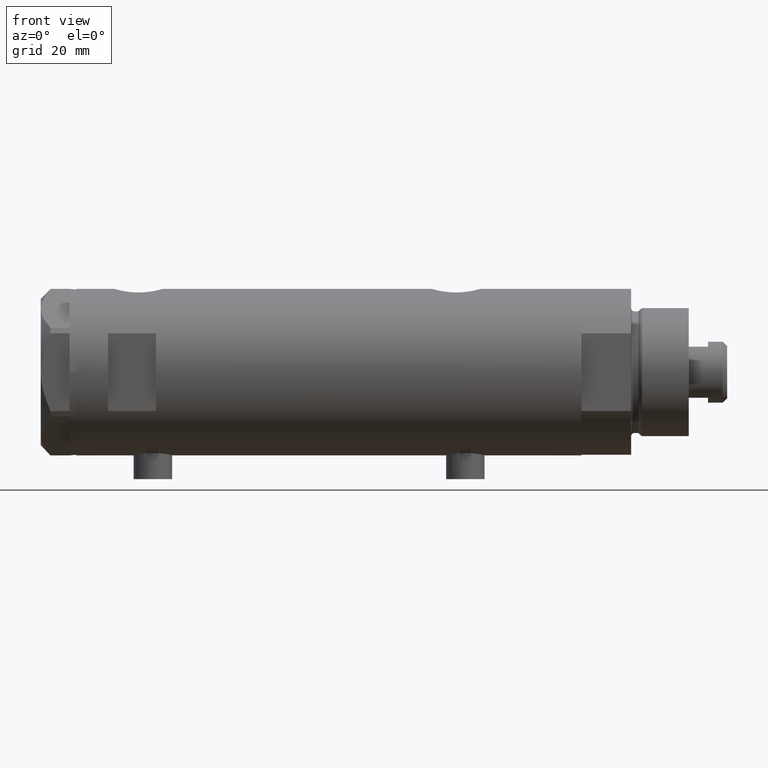
[diagram: clean part render]
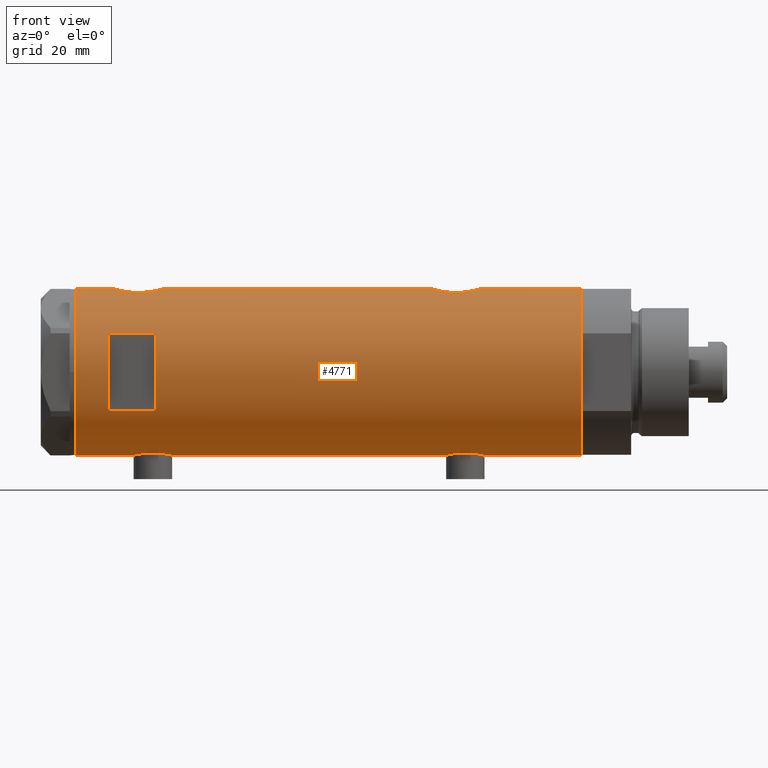
[diagram: same view with one face highlighted and labeled with its STEP entity id]
A machine part, front view. The second image highlights one B-rep face of the part: STEP entity #4771.
In plain terms, the highlighted cylindrical surface (partial cylindrical patch) has radius 26 mm, axis along (-1, -0, 0).
Its self-contained STEP definition (entity closure, byte-faithful):
#44 = DIRECTION ( 'NONE',  ( 0.000000000000000000, 0.000000000000000000, 1.000000000000000000 ) ) ;
#119 = VERTEX_POINT ( 'NONE', #2258 ) ;
#127 = ORIENTED_EDGE ( 'NONE', *, *, #2480, .F. ) ;
#138 = VECTOR ( 'NONE', #2294, 1000.000000000000000 ) ;
#152 = CARTESIAN_POINT ( 'NONE',  ( -25.24765475072630139, -6.209883762780014749, -41.83321815644903552 ) ) ;
#172 = CARTESIAN_POINT ( 'NONE',  ( 25.17393786935995692, -6.507882790539421869, 55.68962666655968974 ) ) ;
#191 = CARTESIAN_POINT ( 'NONE',  ( 0.000000000000000000, 0.000000000000000000, -78.95000000000000284 ) ) ;
#193 = CARTESIAN_POINT ( 'NONE',  ( 24.89478872726946079, -7.499966281647701294, 59.69821850634782123 ) ) ;
#195 = CARTESIAN_POINT ( 'NONE',  ( 25.17510548814053095, -6.503212750695464450, -35.98238212184651275 ) ) ;
#197 = CARTESIAN_POINT ( 'NONE',  ( -25.23763877699558122, -6.249927116972450847, -42.85835527665468447 ) ) ;
#217 = CARTESIAN_POINT ( 'NONE',  ( 24.91324908721446718, -7.438459228814661373, 60.44017499374191260 ) ) ;
#229 = CARTESIAN_POINT ( 'NONE',  ( -26.00000000000000000, -0.4086738135806028960, 48.70000000000000995 ) ) ;
#238 = CARTESIAN_POINT ( 'NONE',  ( 0.000000000000000000, 0.000000000000000000, 78.95000000000000284 ) ) ;
#246 = CARTESIAN_POINT ( 'NONE',  ( 25.59665538672496865, -4.580438224580679396, 65.40889127712388529 ) ) ;
#249 = CARTESIAN_POINT ( 'NONE',  ( 25.59665538672496155, -4.580438224580676732, -33.79110872287610334 ) ) ;
#305 = DIRECTION ( 'NONE',  ( 0.000000000000000000, 0.000000000000000000, 1.000000000000000000 ) ) ;
#324 = CARTESIAN_POINT ( 'NONE',  ( -25.67167563980648382, -4.129238867693851844, 50.24065943568894710 ) ) ;
#345 = LINE ( 'NONE', #2269, #138 ) ;
#371 = CARTESIAN_POINT ( 'NONE',  ( -25.92364458890658696, -2.026637113504536458, 60.87630990691475574 ) ) ;
#400 = CARTESIAN_POINT ( 'NONE',  ( -25.85385060263650203, -2.778671585188186910, 60.56314451304238133 ) ) ;
#457 = EDGE_CURVE ( 'NONE', #1520, #4320, #3924, .T. ) ;
#491 = CARTESIAN_POINT ( 'NONE',  ( 26.00000000000000355, 0.000000000000000000, -78.95000000000000284 ) ) ;
#492 = CARTESIAN_POINT ( 'NONE',  ( -25.64593536028936072, -4.278686337618966995, -38.08968397039122067 ) ) ;
#512 = DIRECTION ( 'NONE',  ( -0.000000000000000000, -0.000000000000000000, -1.000000000000000000 ) ) ;
#532 = CARTESIAN_POINT ( 'NONE',  ( 25.72873412774686486, -3.768477344985556421, 65.95287460144461988 ) ) ;
#536 = CARTESIAN_POINT ( 'NONE',  ( -25.57228991600092272, -4.705691472451704271, -46.78339690124655448 ) ) ;
#560 = CARTESIAN_POINT ( 'NONE',  ( 25.52567976009757089, -4.956266804246109103, 65.10019927459094902 ) ) ;
#563 = CARTESIAN_POINT ( 'NONE',  ( -25.42883439573801141, -5.424786127492342125, -39.51918542739093709 ) ) ;
#564 = EDGE_CURVE ( 'NONE', #4646, #1017, #1468, .T. ) ;
#573 = LINE ( 'NONE', #2084, #688 ) ;
#583 = CARTESIAN_POINT ( 'NONE',  ( 26.00000000000000355, -0.4910237949823177406, 66.94999999999998863 ) ) ;
#585 = CARTESIAN_POINT ( 'NONE',  ( 25.78993643992928853, -3.329561377902402697, -33.01178439721263658 ) ) ;
#587 = CARTESIAN_POINT ( 'NONE',  ( -25.38744165544136777, -5.612847683295916212, -45.42987583238478067 ) ) ;
#596 = CARTESIAN_POINT ( 'NONE',  ( -25.95218276861526618, -1.627663810194429406, 48.90149019612395165 ) ) ;
#608 = EDGE_CURVE ( 'NONE', #2260, #119, #1695, .T. ) ;
#616 = CARTESIAN_POINT ( 'NONE',  ( 25.59500516383205593, -4.575229401795787965, -45.69787755065420498 ) ) ;
#634 = CARTESIAN_POINT ( 'NONE',  ( -26.00000000000000355, -2.813058302341337106E-16, 61.20000000000000284 ) ) ;
#640 = CARTESIAN_POINT ( 'NONE',  ( 25.30930190055639883, -5.959775463244125326, 54.87025956521971892 ) ) ;
#643 = CARTESIAN_POINT ( 'NONE',  ( 0.000000000000000000, 0.000000000000000000, 53.95000000000012363 ) ) ;
#647 = CARTESIAN_POINT ( 'NONE',  ( 26.00000000000000355, 3.343657407582877388E-16, -47.25000000000000000 ) ) ;
#662 = CARTESIAN_POINT ( 'NONE',  ( 24.89854802586676286, -7.487520416261737921, -39.25184316422095065 ) ) ;
#667 = CARTESIAN_POINT ( 'NONE',  ( -25.38744165544137132, -5.612847683295914436, 52.17012416761526339 ) ) ;
#688 = VECTOR ( 'NONE', #1394, 1000.000000000000000 ) ;
#690 = DIRECTION ( 'NONE',  ( 1.000000000000000000, 0.000000000000000000, 0.000000000000000000 ) ) ;
#739 = CARTESIAN_POINT ( 'NONE',  ( -25.38662204309617110, -5.616507264474310368, 57.72199377719326208 ) ) ;
#803 = EDGE_CURVE ( 'NONE', #3344, #3748, #345, .T. ) ;
#853 = CARTESIAN_POINT ( 'NONE',  ( -25.74330903162725903, -3.648508829439220946, -37.57132285284201600 ) ) ;
#876 = ORIENTED_EDGE ( 'NONE', *, *, #2471, .T. ) ;
#879 = DIRECTION ( 'NONE',  ( 0.000000000000000000, 0.000000000000000000, 1.000000000000000000 ) ) ;
#894 = EDGE_CURVE ( 'NONE', #1728, #3716, #2166, .T. ) ;
#895 = CARTESIAN_POINT ( 'NONE',  ( 26.00000000000000355, -3.975028449552882818E-20, 66.95000000000000284 ) ) ;
#914 = LINE ( 'NONE', #3250, #1802 ) ;
#924 = CARTESIAN_POINT ( 'NONE',  ( 25.89059789403177092, -2.425642437452263156, 66.56377447242300605 ) ) ;
#930 = CARTESIAN_POINT ( 'NONE',  ( -25.52190669608696183, -4.968444991210430040, -46.46341092192485434 ) ) ;
#952 = CARTESIAN_POINT ( 'NONE',  ( 25.98569226047905545, -0.9886551788957260722, 51.99917623399824151 ) ) ;
#954 = CARTESIAN_POINT ( 'NONE',  ( 25.11342038069227200, -6.734617143597207978, -36.41229304209507234 ) ) ;
#956 = CARTESIAN_POINT ( 'NONE',  ( -25.49846181844014126, -5.083495422175134060, -39.00822496617402635 ) ) ;
#967 = CARTESIAN_POINT ( 'NONE',  ( -26.00000000000000355, 3.184077527313362130E-15, 48.70000000000000995 ) ) ;
#980 = CARTESIAN_POINT ( 'NONE',  ( 24.92415241886515176, -7.401968919186680651, -38.51676462555185054 ) ) ;
#1017 = VERTEX_POINT ( 'NONE', #4705 ) ;
#1019 = CARTESIAN_POINT ( 'NONE',  ( -25.99036913299955742, -0.8159609457881432659, 48.73968856968109264 ) ) ;
#1036 = EDGE_LOOP ( 'NONE', ( #1612, #3061, #3268, #4561 ) ) ;
#1037 = CARTESIAN_POINT ( 'NONE',  ( 25.31004928890824957, -5.952041021437452173, -35.18019400116495632 ) ) ;
#1063 = CARTESIAN_POINT ( 'NONE',  ( -25.57167894663061958, -4.701762988462087733, 59.07280450192418186 ) ) ;
#1072 = CARTESIAN_POINT ( 'NONE',  ( 26.00000000000000355, -7.221007372182803218E-17, 51.95000000000000284 ) ) ;
#1098 = CARTESIAN_POINT ( 'NONE',  ( -26.00000000000000355, 3.184081677783118585E-15, -78.95000000000000284 ) ) ;
#1102 = AXIS2_PLACEMENT_3D ( 'NONE', #3122, #1213, #3874 ) ;
#1115 = VERTEX_POINT ( 'NONE', #1072 ) ;
#1116 = CARTESIAN_POINT ( 'NONE',  ( -25.74330903162726614, -3.648508829439214285, 60.02867714715799963 ) ) ;
#1133 = CARTESIAN_POINT ( 'NONE',  ( -25.67063510297210271, -4.128418051804841227, 59.64682575271267240 ) ) ;
#1153 = CARTESIAN_POINT ( 'NONE',  ( -25.81160981652327280, -3.129523010631800606, -48.06392973722076079 ) ) ;
#1187 = CARTESIAN_POINT ( 'NONE',  ( -26.00000000000000355, 3.184077527325983904E-15, -48.90000000000001279 ) ) ;
#1195 = CARTESIAN_POINT ( 'NONE',  ( -26.00000000000000355, 3.184081677783118585E-15, 78.95000000000000284 ) ) ;
#1196 = LINE ( 'NONE', #3488, #3528 ) ;
#1203 = EDGE_CURVE ( 'NONE', #4320, #1295, #4812, .T. ) ;
#1207 = VERTEX_POINT ( 'NONE', #634 ) ;
#1213 = DIRECTION ( 'NONE',  ( 0.000000000000000000, 0.000000000000000000, 1.000000000000000000 ) ) ;
#1226 = LINE ( 'NONE', #491, #4547 ) ;
#1230 = CARTESIAN_POINT ( 'NONE',  ( -26.00000000000000355, -6.335391871414786776E-16, -36.39999999999999858 ) ) ;
#1244 = ORIENTED_EDGE ( 'NONE', *, *, #1899, .F. ) ;
#1249 = DIRECTION ( 'NONE',  ( 1.000000000000000000, 0.000000000000000000, 0.000000000000000000 ) ) ;
#1272 = CARTESIAN_POINT ( 'NONE',  ( 25.59500516383205948, -4.575229401795795958, 53.50212244934583339 ) ) ;
#1295 = VERTEX_POINT ( 'NONE', #967 ) ;
#1298 = CARTESIAN_POINT ( 'NONE',  ( 24.89854802586675930, -7.487520416261737033, 59.94815683577904508 ) ) ;
#1301 = CARTESIAN_POINT ( 'NONE',  ( -25.23758491649667235, -6.250144606721711682, -42.23988300428196396 ) ) ;
#1309 = CARTESIAN_POINT ( 'NONE',  ( -26.00000000000000355, 3.184077527313362130E-15, 48.70000000000000995 ) ) ;
#1327 = CARTESIAN_POINT ( 'NONE',  ( 24.96970063328116751, -7.247045583599693863, -41.69719214854801237 ) ) ;
#1329 = CARTESIAN_POINT ( 'NONE',  ( -25.95206678899177888, -1.628763264760263230, -36.60199186669786542 ) ) ;
#1358 = CARTESIAN_POINT ( 'NONE',  ( 25.38109653984943748, -5.641393955635659374, -34.80180907551250158 ) ) ;
#1382 = CARTESIAN_POINT ( 'NONE',  ( 25.00829008792692321, -7.115081037226465455, 61.87301003740819993 ) ) ;
#1384 = CARTESIAN_POINT ( 'NONE',  ( 25.99999999999999645, -0.4982617809740603199, -47.24999999999999289 ) ) ;
#1394 = DIRECTION ( 'NONE',  ( 0.000000000000000000, 0.000000000000000000, 1.000000000000000000 ) ) ;
#1409 = CARTESIAN_POINT ( 'NONE',  ( 25.30930190055640239, -5.959775463244125326, -44.32974043478029103 ) ) ;
#1413 = CARTESIAN_POINT ( 'NONE',  ( 26.00000000000000355, -3.975028449552882818E-20, 66.95000000000000284 ) ) ;
#1443 = CARTESIAN_POINT ( 'NONE',  ( -25.42977453177915947, -5.420307583276853691, 51.81187728206638354 ) ) ;
#1457 = ORIENTED_EDGE ( 'NONE', *, *, #457, .F. ) ;
#1468 = CIRCLE ( 'NONE', #3678, 26.00000000000000355 ) ;
#1516 = DIRECTION ( 'NONE',  ( -0.000000000000000000, 0.000000000000000000, -1.000000000000000000 ) ) ;
#1520 = VERTEX_POINT ( 'NONE', #1187 ) ;
#1537 = CARTESIAN_POINT ( 'NONE',  ( -25.92425332714050867, -2.018894156999445411, -48.57896120675330565 ) ) ;
#1597 = DIRECTION ( 'NONE',  ( 0.000000000000000000, 0.000000000000000000, 1.000000000000000000 ) ) ;
#1598 = EDGE_CURVE ( 'NONE', #1207, #2362, #1196, .T. ) ;
#1612 = ORIENTED_EDGE ( 'NONE', *, *, #564, .F. ) ;
#1623 = CARTESIAN_POINT ( 'NONE',  ( -25.25769689814629615, -6.168504065326074759, -43.67646635296746638 ) ) ;
#1644 = CARTESIAN_POINT ( 'NONE',  ( 25.62983961939740496, -4.376509667782458202, 53.35441500957042393 ) ) ;
#1647 = CARTESIAN_POINT ( 'NONE',  ( -25.31538696791481868, -5.929326713517960812, -40.63203367791900433 ) ) ;
#1663 = CARTESIAN_POINT ( 'NONE',  ( 25.52449676677458612, -4.953491517965881386, 53.81325508665923962 ) ) ;
#1687 = DIRECTION ( 'NONE',  ( 0.000000000000000000, 0.000000000000000000, 1.000000000000000000 ) ) ;
#1690 = CARTESIAN_POINT ( 'NONE',  ( 25.41756773306325456, -5.475260495868974786, 64.58140873656947178 ) ) ;
#1693 = CARTESIAN_POINT ( 'NONE',  ( -25.99009752186832856, -0.8230863847107483533, -36.44082928593318371 ) ) ;
#1694 = B_SPLINE_CURVE_WITH_KNOTS ( 'NONE', 3,
 ( #895, #583, #3925, #4291, #924, #2440, #532, #246, #560, #1690, #3158, #3602, #3632, #1741, #2850, #1382, #3202, #2102, #217, #1298, #193, #2489, #1717, #3952, #3580, #4760, #4709, #3555, #172, #640, #4347, #4659, #1663, #1272, #1644, #3230, #3178, #2026, #4737, #952, #4317, #4684 ),
 .UNSPECIFIED., .F., .F.,
 ( 4, 2, 2, 2, 2, 2, 2, 2, 2, 2, 2, 2, 2, 2, 2, 2, 2, 2, 2, 2, 4 ),
 ( 0.02357432247332888128, 0.02504731828495720264, 0.02652031409658552746, 0.02799330990821384882, 0.02946630571984217017, 0.03020280362565634646, 0.03093930153147052275, 0.03241229734309883370, 0.03388529315472715159, 0.03462179106054130706, 0.03535828896635546947, 0.03683128477798380818, 0.03756778268379798447, 0.03830428058961215382, 0.03977727640124052721, 0.04125027221286890755, 0.04198677011868309772, 0.04272326802449730176, 0.04419626383612570292, 0.04566925964775411101, 0.04714225545938251910 ),
 .UNSPECIFIED. ) ;
#1695 = CIRCLE ( 'NONE', #2959, 26.00000000000000355 ) ;
#1717 = CARTESIAN_POINT ( 'NONE',  ( 24.90947356773250121, -7.451722770779340976, 58.46809158171851095 ) ) ;
#1719 = CARTESIAN_POINT ( 'NONE',  ( 26.00000000000001066, -0.4910237949823163528, -32.25000000000000711 ) ) ;
#1728 = VERTEX_POINT ( 'NONE', #3827 ) ;
#1741 = CARTESIAN_POINT ( 'NONE',  ( 25.17510548814053450, -6.503212750695461786, 63.21761787815348299 ) ) ;
#1744 = CARTESIAN_POINT ( 'NONE',  ( 25.52449676677459678, -4.953491517965876945, -45.38674491334075611 ) ) ;
#1763 = CARTESIAN_POINT ( 'NONE',  ( 25.72873412774685775, -3.768477344985552424, -33.24712539855536164 ) ) ;
#1785 = AXIS2_PLACEMENT_3D ( 'NONE', #238, #305, #1810 ) ;
#1802 = VECTOR ( 'NONE', #4305, 1000.000000000000000 ) ;
#1810 = DIRECTION ( 'NONE',  ( 1.000000000000000000, 0.000000000000000000, 0.000000000000000000 ) ) ;
#1823 = VERTEX_POINT ( 'NONE', #4613 ) ;
#1830 = CARTESIAN_POINT ( 'NONE',  ( -25.23758491649666169, -6.250144606721704577, 55.36011699571807299 ) ) ;
#1834 = EDGE_CURVE ( 'NONE', #1823, #1115, #1226, .T. ) ;
#1875 = CARTESIAN_POINT ( 'NONE',  ( -26.00000000000000000, -0.4086738135806058381, -48.90000000000002700 ) ) ;
#1879 = CARTESIAN_POINT ( 'NONE',  ( -25.31538696791480447, -5.929326713517952818, 56.96796632208098998 ) ) ;
#1899 = EDGE_CURVE ( 'NONE', #1823, #4038, #2163, .T. ) ;
#1957 = CYLINDRICAL_SURFACE ( 'NONE', #1102, 26.00000000000000355 ) ;
#1968 = EDGE_CURVE ( 'NONE', #2362, #3748, #2264, .T. ) ;
#1990 = CARTESIAN_POINT ( 'NONE',  ( 26.00000000000000355, 0.000000000000000000, 78.95000000000000284 ) ) ;
#2000 = ORIENTED_EDGE ( 'NONE', *, *, #3502, .F. ) ;
#2026 = CARTESIAN_POINT ( 'NONE',  ( 25.88994451797512397, -2.432613607265602162, 52.33859031286799279 ) ) ;
#2051 = CARTESIAN_POINT ( 'NONE',  ( 25.01107424167501136, -7.102941973849614676, -42.17062848662576613 ) ) ;
#2053 = CARTESIAN_POINT ( 'NONE',  ( -25.71926338401909362, -3.813768894920912977, -37.69427860166183564 ) ) ;
#2073 = CARTESIAN_POINT ( 'NONE',  ( 25.89059789403177447, -2.425642437452257383, -32.63622552757698969 ) ) ;
#2084 = CARTESIAN_POINT ( 'NONE',  ( 26.00000000000000355, 0.000000000000000000, -78.95000000000000284 ) ) ;
#2102 = CARTESIAN_POINT ( 'NONE',  ( 24.92415241886516242, -7.401968919186685092, 60.68323537444815940 ) ) ;
#2104 = CARTESIAN_POINT ( 'NONE',  ( 25.62983961939740141, -4.376509667782454649, -45.84558499042960733 ) ) ;
#2140 = CARTESIAN_POINT ( 'NONE',  ( -25.92425332714050867, -2.018894156999440526, 49.02103879324670288 ) ) ;
#2163 = B_SPLINE_CURVE_WITH_KNOTS ( 'NONE', 3,
 ( #2468, #1719, #4350, #2515, #2073, #585, #1763, #249, #4741, #4040, #1358, #1037, #2852, #195, #954, #3260, #2878, #980, #3658, #662, #3604, #3286, #3234, #4396, #1327, #2051, #4791, #2491, #2906, #1409, #4423, #4008, #1744, #616, #2104, #3635, #4762, #2541, #3683, #4064, #1384, #2773 ),
 .UNSPECIFIED., .F., .F.,
 ( 4, 2, 2, 2, 2, 2, 2, 2, 2, 2, 2, 2, 2, 2, 2, 2, 2, 2, 2, 2, 4 ),
 ( 0.02357432247332888128, 0.02504731828495719570, 0.02652031409658551359, 0.02799330990821382800, 0.02946630571984214589, 0.03020280362565630136, 0.03093930153147046030, 0.03241229734309879207, 0.03388529315472712383, 0.03462179106054129318, 0.03535828896635545560, 0.03683128477798380818, 0.03756778268379799834, 0.03830428058961218157, 0.03977727640124056885, 0.04125027221286896306, 0.04198677011868315323, 0.04272326802449734340, 0.04419626383612573067, 0.04566925964775411795, 0.04714225545938250522 ),
 .UNSPECIFIED. ) ;
#2165 = CARTESIAN_POINT ( 'NONE',  ( -25.81160981652327280, -3.129523010631799718, 49.53607026277927616 ) ) ;
#2166 = CIRCLE ( 'NONE', #3524, 26.00000000000000355 ) ;
#2197 = CARTESIAN_POINT ( 'NONE',  ( -25.72076778631231164, -3.815670258243487378, 49.98312189468122568 ) ) ;
#2246 = CARTESIAN_POINT ( 'NONE',  ( -25.81232680456767170, -3.137210741985118290, 60.37113657221578933 ) ) ;
#2258 = CARTESIAN_POINT ( 'NONE',  ( 26.00000000000000355, 0.000000000000000000, -78.95000000000000284 ) ) ;
#2260 = VERTEX_POINT ( 'NONE', #1098 ) ;
#2264 = CIRCLE ( 'NONE', #1785, 26.00000000000000355 ) ;
#2269 = CARTESIAN_POINT ( 'NONE',  ( 26.00000000000000355, 0.000000000000000000, -78.95000000000000284 ) ) ;
#2294 = DIRECTION ( 'NONE',  ( 0.000000000000000000, 0.000000000000000000, 1.000000000000000000 ) ) ;
#2362 = VERTEX_POINT ( 'NONE', #1195 ) ;
#2379 = FACE_BOUND ( 'NONE', #1036, .T. ) ;
#2392 = CARTESIAN_POINT ( 'NONE',  ( -25.81232680456767170, -3.137210741985124507, -37.22886342778421920 ) ) ;
#2416 = CARTESIAN_POINT ( 'NONE',  ( -25.38662204309617465, -5.616507264474316585, -39.87800622280675356 ) ) ;
#2440 = CARTESIAN_POINT ( 'NONE',  ( 25.78993643992928497, -3.329561377902408914, 66.18821560278735205 ) ) ;
#2468 = CARTESIAN_POINT ( 'NONE',  ( 26.00000000000000355, -3.975025925197986111E-20, -32.25000000000000000 ) ) ;
#2471 = EDGE_CURVE ( 'NONE', #119, #4038, #573, .T. ) ;
#2480 = EDGE_CURVE ( 'NONE', #1295, #1207, #4534, .T. ) ;
#2489 = CARTESIAN_POINT ( 'NONE',  ( 24.89475831528844907, -7.500067228253130658, 58.95662571746464664 ) ) ;
#2491 = CARTESIAN_POINT ( 'NONE',  ( 25.11243836838845667, -6.738202653785825724, -43.07956649155158146 ) ) ;
#2515 = CARTESIAN_POINT ( 'NONE',  ( 25.93085545515512891, -1.956676574435509686, -32.49272963169732265 ) ) ;
#2541 = CARTESIAN_POINT ( 'NONE',  ( 25.88994451797511331, -2.432613607265599498, -46.86140968713201005 ) ) ;
#2549 = CARTESIAN_POINT ( 'NONE',  ( -26.00000000000000355, -2.813058302341337106E-16, 61.20000000000000284 ) ) ;
#2570 = CARTESIAN_POINT ( 'NONE',  ( 0.000000000000000000, 0.000000000000000000, 68.95000000000003126 ) ) ;
#2574 = CARTESIAN_POINT ( 'NONE',  ( -25.24022290516698419, -6.239518219915426656, 54.53402784061568553 ) ) ;
#2696 = ORIENTED_EDGE ( 'NONE', *, *, #608, .T. ) ;
#2730 = CARTESIAN_POINT ( 'NONE',  ( -25.67167563980648382, -4.129238867693854509, -47.35934056431105432 ) ) ;
#2773 = CARTESIAN_POINT ( 'NONE',  ( 26.00000000000000355, 3.343657407582877388E-16, -47.25000000000000000 ) ) ;
#2779 = EDGE_LOOP ( 'NONE', ( #4570, #2696, #876, #1244, #3883, #2000, #3856, #4325, #4264, #127, #3442, #1457 ) ) ;
#2804 = CARTESIAN_POINT ( 'NONE',  ( -25.28632996747171902, -6.050474653715423479, -41.03088129158464881 ) ) ;
#2850 = CARTESIAN_POINT ( 'NONE',  ( 25.11342038069227200, -6.734617143597204425, 62.78770695790495893 ) ) ;
#2852 = CARTESIAN_POINT ( 'NONE',  ( 25.27534302296961854, -6.097250460344746159, -35.37590386902926554 ) ) ;
#2871 = CARTESIAN_POINT ( 'NONE',  ( -26.00000000000000355, 3.184081677783118585E-15, -78.95000000000000284 ) ) ;
#2878 = CARTESIAN_POINT ( 'NONE',  ( 24.96672817551788270, -7.257586026187393458, -37.79615800278702409 ) ) ;
#2906 = CARTESIAN_POINT ( 'NONE',  ( 25.17393786935995692, -6.507882790539420981, -43.51037333344031310 ) ) ;
#2916 = CARTESIAN_POINT ( 'NONE',  ( -25.95206678899177888, -1.628763264760260565, 60.99800813330215732 ) ) ;
#2939 = CARTESIAN_POINT ( 'NONE',  ( -25.25025691038242570, -6.198787452305309920, 54.12558834604206481 ) ) ;
#2959 = AXIS2_PLACEMENT_3D ( 'NONE', #191, #1687, #1249 ) ;
#2961 = CARTESIAN_POINT ( 'NONE',  ( -25.78943824387524231, -3.306687742228910487, 49.64245861216535616 ) ) ;
#2967 = VECTOR ( 'NONE', #4388, 1000.000000000000000 ) ;
#2994 = CARTESIAN_POINT ( 'NONE',  ( -25.25769689814630325, -6.168504065326071206, 53.92353364703255636 ) ) ;
#3014 = CARTESIAN_POINT ( 'NONE',  ( -25.95218276861526263, -1.627663810194436067, -48.69850980387603556 ) ) ;
#3016 = CARTESIAN_POINT ( 'NONE',  ( -25.49846181844015192, -5.083495422175122513, 58.59177503382597507 ) ) ;
#3034 = CARTESIAN_POINT ( 'NONE',  ( -25.87202607293666645, -2.583404329177997116, -48.34473666854512430 ) ) ;
#3061 = ORIENTED_EDGE ( 'NONE', *, *, #4444, .F. ) ;
#3073 = VECTOR ( 'NONE', #512, 1000.000000000000000 ) ;
#3122 = CARTESIAN_POINT ( 'NONE',  ( 0.000000000000000000, 0.000000000000000000, -78.95000000000000284 ) ) ;
#3135 = CARTESIAN_POINT ( 'NONE',  ( -25.92364458890659762, -2.026637113504532017, -36.72369009308525278 ) ) ;
#3158 = CARTESIAN_POINT ( 'NONE',  ( 25.38109653984944103, -5.641393955635662039, 64.39819092448752258 ) ) ;
#3178 = CARTESIAN_POINT ( 'NONE',  ( 25.78902964777116580, -3.336582972512951883, 52.71524159542262566 ) ) ;
#3202 = CARTESIAN_POINT ( 'NONE',  ( 24.96672817551787560, -7.257586026187392569, 61.40384199721296454 ) ) ;
#3230 = CARTESIAN_POINT ( 'NONE',  ( 25.72912156655465310, -3.765948295762495235, 52.94557024600777595 ) ) ;
#3234 = CARTESIAN_POINT ( 'NONE',  ( 24.90947356773249766, -7.451722770779341865, -40.73190841828151321 ) ) ;
#3250 = CARTESIAN_POINT ( 'NONE',  ( -26.00000000000000355, 3.184081677783118585E-15, -78.95000000000000284 ) ) ;
#3260 = CARTESIAN_POINT ( 'NONE',  ( 25.00829008792691255, -7.115081037226466343, -37.32698996259182422 ) ) ;
#3268 = ORIENTED_EDGE ( 'NONE', *, *, #894, .F. ) ;
#3286 = CARTESIAN_POINT ( 'NONE',  ( 24.89475831528845262, -7.500067228253130658, -40.24337428253534910 ) ) ;
#3288 = DIRECTION ( 'NONE',  ( -0.000000000000000000, -4.625929269271486900E-15, 1.000000000000000000 ) ) ;
#3325 = CARTESIAN_POINT ( 'NONE',  ( -25.31551596256916525, -5.928819821281959612, 52.92988508095918831 ) ) ;
#3328 = LINE ( 'NONE', #4098, #3866 ) ;
#3344 = VERTEX_POINT ( 'NONE', #1413 ) ;
#3367 = CARTESIAN_POINT ( 'NONE',  ( -25.52274351135605102, -4.960534548086199536, 58.75751745340734544 ) ) ;
#3396 = CARTESIAN_POINT ( 'NONE',  ( -25.99036913299956453, -0.8159609457881494832, -48.86031143031891588 ) ) ;
#3398 = CARTESIAN_POINT ( 'NONE',  ( -25.42883439573800430, -5.424786127492328802, 58.08081457260910696 ) ) ;
#3419 = CARTESIAN_POINT ( 'NONE',  ( -26.00000000000000355, 3.184077527325983904E-15, -48.90000000000001279 ) ) ;
#3442 = ORIENTED_EDGE ( 'NONE', *, *, #1203, .F. ) ;
#3488 = CARTESIAN_POINT ( 'NONE',  ( -26.00000000000000355, 3.184081677783118585E-15, -78.95000000000000284 ) ) ;
#3502 = EDGE_CURVE ( 'NONE', #3344, #1115, #1694, .T. ) ;
#3524 = AXIS2_PLACEMENT_3D ( 'NONE', #2570, #1516, #690 ) ;
#3528 = VECTOR ( 'NONE', #1597, 1000.000000000000000 ) ;
#3536 = CARTESIAN_POINT ( 'NONE',  ( -25.28680988956730147, -6.048472998962283853, -44.27627694188245755 ) ) ;
#3555 = CARTESIAN_POINT ( 'NONE',  ( 25.11243836838845667, -6.738202653785824836, 56.12043350844841427 ) ) ;
#3560 = CARTESIAN_POINT ( 'NONE',  ( -25.42977453177914882, -5.420307583276860797, -45.78812271793364630 ) ) ;
#3580 = CARTESIAN_POINT ( 'NONE',  ( 24.96970063328116751, -7.247045583599690310, 57.50280785145197626 ) ) ;
#3583 = CARTESIAN_POINT ( 'NONE',  ( -25.72076778631231164, -3.815670258243489599, -47.61687810531881127 ) ) ;
#3602 = CARTESIAN_POINT ( 'NONE',  ( 25.31004928890826378, -5.952041021437455726, 64.01980599883506784 ) ) ;
#3604 = CARTESIAN_POINT ( 'NONE',  ( 24.89478872726946079, -7.499966281647702182, -39.50178149365218871 ) ) ;
#3632 = CARTESIAN_POINT ( 'NONE',  ( 25.27534302296961854, -6.097250460344744383, 63.82409613097077283 ) ) ;
#3635 = CARTESIAN_POINT ( 'NONE',  ( 25.72912156655465665, -3.765948295762491238, -46.25442975399223400 ) ) ;
#3658 = CARTESIAN_POINT ( 'NONE',  ( 24.91324908721445652, -7.438459228814655155, -38.75982500625809024 ) ) ;
#3678 = AXIS2_PLACEMENT_3D ( 'NONE', #643, #3288, #4010 ) ;
#3683 = CARTESIAN_POINT ( 'NONE',  ( 25.93098857934040424, -1.953835360821274847, -47.00773664702559529 ) ) ;
#3693 = EDGE_CURVE ( 'NONE', #1017, #1728, #3328, .T. ) ;
#3716 = VERTEX_POINT ( 'NONE', #4523 ) ;
#3748 = VERTEX_POINT ( 'NONE', #1990 ) ;
#3750 = CARTESIAN_POINT ( 'NONE',  ( -25.52190669608696183, -4.968444991210422934, 51.13658907807515419 ) ) ;
#3794 = CARTESIAN_POINT ( 'NONE',  ( -25.28632996747171902, -6.050474653715411932, 56.56911870841537393 ) ) ;
#3827 = CARTESIAN_POINT ( 'NONE',  ( 12.12435565298214080, -23.00000000000000355, 68.95000000000003126 ) ) ;
#3856 = ORIENTED_EDGE ( 'NONE', *, *, #803, .T. ) ;
#3866 = VECTOR ( 'NONE', #44, 1000.000000000000000 ) ;
#3874 = DIRECTION ( 'NONE',  ( 1.000000000000000000, 0.000000000000000000, 0.000000000000000000 ) ) ;
#3883 = ORIENTED_EDGE ( 'NONE', *, *, #1834, .T. ) ;
#3888 = CARTESIAN_POINT ( 'NONE',  ( -25.57167894663063024, -4.701762988462101944, -38.52719549807584798 ) ) ;
#3907 = CARTESIAN_POINT ( 'NONE',  ( -25.52274351135604391, -4.960534548086211970, -38.84248254659267729 ) ) ;
#3909 = CARTESIAN_POINT ( 'NONE',  ( -12.12435565298214080, -23.00000000000000355, -78.95000000000000284 ) ) ;
#3924 = B_SPLINE_CURVE_WITH_KNOTS ( 'NONE', 3,
 ( #3419, #1875, #3396, #3014, #1537, #3034, #4540, #1153, #4189, #3583, #2730, #536, #930, #3560, #587, #4250, #3536, #1623, #4321, #4688, #197, #1301, #152, #2804, #1647, #2416, #563, #956, #3907, #3888, #4663, #492, #4351, #2053, #853, #2392, #4615, #3135, #1329, #1693, #3931, #3956 ),
 .UNSPECIFIED., .F., .F.,
 ( 4, 2, 2, 2, 2, 2, 2, 2, 2, 2, 2, 2, 2, 2, 2, 2, 2, 2, 2, 2, 4 ),
 ( 0.01961238453869445370, 0.02083783025472768849, 0.02206327597076092328, 0.02267599882877753895, 0.02328872168679415461, 0.02451416740282739287, 0.02573961311886063114, 0.02696505883489386593, 0.02819050455092710072, 0.02880322740894371292, 0.02941595026696031817, 0.03064139598299353562, 0.03186684169902675307, 0.03309228741505997051, 0.03370501027307658271, 0.03431773313109318796, 0.03493045598910979321, 0.03554317884712640541, 0.03676862456315962979, 0.03799407027919286112, 0.03921951599522608550 ),
 .UNSPECIFIED. ) ;
#3925 = CARTESIAN_POINT ( 'NONE',  ( 25.98599366666249111, -0.9828433289544116214, 66.90188401723474954 ) ) ;
#3931 = CARTESIAN_POINT ( 'NONE',  ( -25.99999999999998934, -0.4144764235405737907, -36.39999999999999147 ) ) ;
#3932 = LINE ( 'NONE', #3909, #3073 ) ;
#3952 = CARTESIAN_POINT ( 'NONE',  ( 24.95200646071793926, -7.307522494171281302, 57.74392435812723079 ) ) ;
#3956 = CARTESIAN_POINT ( 'NONE',  ( -26.00000000000000355, -6.335391871414786776E-16, -36.39999999999999858 ) ) ;
#4008 = CARTESIAN_POINT ( 'NONE',  ( 25.48871066912673200, -5.133852125086511009, -45.22290306743978050 ) ) ;
#4010 = DIRECTION ( 'NONE',  ( 1.776356839400250465E-15, 1.000000000000000000, 4.536969091016264466E-15 ) ) ;
#4038 = VERTEX_POINT ( 'NONE', #647 ) ;
#4040 = CARTESIAN_POINT ( 'NONE',  ( 25.41756773306326522, -5.475260495868973898, -34.61859126343051685 ) ) ;
#4064 = CARTESIAN_POINT ( 'NONE',  ( 25.98569226047905190, -0.9886551788957271825, -47.20082376600176133 ) ) ;
#4096 = EDGE_CURVE ( 'NONE', #2260, #1520, #914, .T. ) ;
#4097 = CARTESIAN_POINT ( 'NONE',  ( -25.59645788645698872, -4.565358797148513226, 59.22330529203479443 ) ) ;
#4098 = CARTESIAN_POINT ( 'NONE',  ( 12.12435565298214080, -23.00000000000000355, -78.95000000000000284 ) ) ;
#4142 = CARTESIAN_POINT ( 'NONE',  ( -25.24765475072630139, -6.209883762780005867, 55.76678184355100854 ) ) ;
#4161 = CARTESIAN_POINT ( 'NONE',  ( -25.99009752186832500, -0.8230863847107482423, 61.15917071406682481 ) ) ;
#4189 = CARTESIAN_POINT ( 'NONE',  ( -25.78943824387523165, -3.306687742228911375, -47.95754138783466658 ) ) ;
#4250 = CARTESIAN_POINT ( 'NONE',  ( -25.31551596256916525, -5.928819821281963165, -44.67011491904084153 ) ) ;
#4264 = ORIENTED_EDGE ( 'NONE', *, *, #1598, .F. ) ;
#4291 = CARTESIAN_POINT ( 'NONE',  ( 25.93085545515512536, -1.956676574435512794, 66.70727036830264467 ) ) ;
#4305 = DIRECTION ( 'NONE',  ( 0.000000000000000000, 0.000000000000000000, 1.000000000000000000 ) ) ;
#4317 = CARTESIAN_POINT ( 'NONE',  ( 26.00000000000001066, -0.4982617809740563231, 51.95000000000000995 ) ) ;
#4320 = VERTEX_POINT ( 'NONE', #1230 ) ;
#4321 = CARTESIAN_POINT ( 'NONE',  ( -25.25025691038241860, -6.198787452305317025, -43.47441165395796503 ) ) ;
#4325 = ORIENTED_EDGE ( 'NONE', *, *, #1968, .F. ) ;
#4330 = CARTESIAN_POINT ( 'NONE',  ( -25.87202607293666645, -2.583404329177992675, 49.25526333145489133 ) ) ;
#4337 = CARTESIAN_POINT ( 'NONE',  ( -12.12435565298214080, -23.00000000000000355, 53.95000000000001705 ) ) ;
#4347 = CARTESIAN_POINT ( 'NONE',  ( 25.38125492692910967, -5.649348210287291394, 54.49305665653605502 ) ) ;
#4350 = CARTESIAN_POINT ( 'NONE',  ( 25.98599366666249466, -0.9828433289544072915, -32.29811598276526752 ) ) ;
#4351 = CARTESIAN_POINT ( 'NONE',  ( -25.67063510297210271, -4.128418051804850997, -37.95317424728735034 ) ) ;
#4388 = DIRECTION ( 'NONE',  ( 0.000000000000000000, 0.000000000000000000, 1.000000000000000000 ) ) ;
#4396 = CARTESIAN_POINT ( 'NONE',  ( 24.95200646071794282, -7.307522494171283967, -41.45607564187277205 ) ) ;
#4423 = CARTESIAN_POINT ( 'NONE',  ( 25.38125492692910612, -5.649348210287294059, -44.70694334346394072 ) ) ;
#4427 = CARTESIAN_POINT ( 'NONE',  ( -25.99999999999998934, -0.4144764235405755670, 61.19999999999998153 ) ) ;
#4444 = EDGE_CURVE ( 'NONE', #3716, #4646, #3932, .T. ) ;
#4450 = CARTESIAN_POINT ( 'NONE',  ( -25.23763877699556701, -6.249927116972441965, 54.74164472334533116 ) ) ;
#4479 = CARTESIAN_POINT ( 'NONE',  ( -25.57228991600092627, -4.705691472451699831, 50.81660309875346826 ) ) ;
#4503 = CARTESIAN_POINT ( 'NONE',  ( -25.64593536028936782, -4.278686337618957225, 59.51031602960879496 ) ) ;
#4523 = CARTESIAN_POINT ( 'NONE',  ( -12.12435565298214080, -23.00000000000000355, 68.95000000000003126 ) ) ;
#4534 = B_SPLINE_CURVE_WITH_KNOTS ( 'NONE', 3,
 ( #1309, #229, #1019, #596, #2140, #4330, #4672, #2165, #2961, #2197, #324, #4479, #3750, #1443, #667, #3325, #4800, #2994, #2939, #2574, #4450, #1830, #4142, #3794, #1879, #739, #3398, #3016, #3367, #1063, #4097, #4503, #1133, #4847, #1116, #2246, #400, #371, #2916, #4161, #4427, #2549 ),
 .UNSPECIFIED., .F., .F.,
 ( 4, 2, 2, 2, 2, 2, 2, 2, 2, 2, 2, 2, 2, 2, 2, 2, 2, 2, 2, 2, 4 ),
 ( 0.01961238453869442941, 0.02083783025472767114, 0.02206327597076090941, 0.02267599882877753201, 0.02328872168679415461, 0.02451416740282739287, 0.02573961311886063114, 0.02696505883489386940, 0.02819050455092710766, 0.02880322740894371986, 0.02941595026696032858, 0.03064139598299354950, 0.03186684169902676694, 0.03309228741505998439, 0.03370501027307658271, 0.03431773313109318796, 0.03493045598910978627, 0.03554317884712639153, 0.03676862456315960898, 0.03799407027919282642, 0.03921951599522604387 ),
 .UNSPECIFIED. ) ;
#4540 = CARTESIAN_POINT ( 'NONE',  ( -25.85288666140181491, -2.767917424206677079, -48.25742209989675047 ) ) ;
#4547 = VECTOR ( 'NONE', #879, 1000.000000000000000 ) ;
#4561 = ORIENTED_EDGE ( 'NONE', *, *, #3693, .F. ) ;
#4570 = ORIENTED_EDGE ( 'NONE', *, *, #4096, .F. ) ;
#4613 = CARTESIAN_POINT ( 'NONE',  ( 26.00000000000000355, -3.975025925197986111E-20, -32.25000000000000000 ) ) ;
#4615 = CARTESIAN_POINT ( 'NONE',  ( -25.85385060263651269, -2.778671585188184689, -37.03685548695762009 ) ) ;
#4624 = FACE_OUTER_BOUND ( 'NONE', #2779, .T. ) ;
#4646 = VERTEX_POINT ( 'NONE', #4337 ) ;
#4659 = CARTESIAN_POINT ( 'NONE',  ( 25.48871066912673200, -5.133852125086510121, 53.97709693256022234 ) ) ;
#4663 = CARTESIAN_POINT ( 'NONE',  ( -25.59645788645699227, -4.565358797148523884, -38.37669470796522120 ) ) ;
#4672 = CARTESIAN_POINT ( 'NONE',  ( -25.85288666140180780, -2.767917424206675747, 49.34257790010328648 ) ) ;
#4684 = CARTESIAN_POINT ( 'NONE',  ( 26.00000000000000355, -7.221007372182803218E-17, 51.95000000000000284 ) ) ;
#4688 = CARTESIAN_POINT ( 'NONE',  ( -25.24022290516699485, -6.239518219915436426, -43.06597215938434431 ) ) ;
#4705 = CARTESIAN_POINT ( 'NONE',  ( 12.12435565298214080, -23.00000000000000355, 53.95000000000001705 ) ) ;
#4709 = CARTESIAN_POINT ( 'NONE',  ( 25.03461301890608581, -7.019803056070502478, 56.79816816893102782 ) ) ;
#4737 = CARTESIAN_POINT ( 'NONE',  ( 25.93098857934041135, -1.953835360821271960, 52.19226335297440755 ) ) ;
#4741 = CARTESIAN_POINT ( 'NONE',  ( 25.52567976009756379, -4.956266804246105551, -34.09980072540906093 ) ) ;
#4760 = CARTESIAN_POINT ( 'NONE',  ( 25.01107424167500781, -7.102941973849612900, 57.02937151337422250 ) ) ;
#4762 = CARTESIAN_POINT ( 'NONE',  ( 25.78902964777116935, -3.336582972512946554, -46.48475840457737007 ) ) ;
#4771 = ADVANCED_FACE ( 'NONE', ( #4624, #2379 ), #1957, .T. ) ;
#4791 = CARTESIAN_POINT ( 'NONE',  ( 25.03461301890608581, -7.019803056070506031, -42.40183183106896792 ) ) ;
#4800 = CARTESIAN_POINT ( 'NONE',  ( -25.28680988956730857, -6.048472998962280300, 53.32372305811759361 ) ) ;
#4812 = LINE ( 'NONE', #2871, #2967 ) ;
#4847 = CARTESIAN_POINT ( 'NONE',  ( -25.71926338401908652, -3.813768894920905872, 59.90572139833817289 ) ) ;